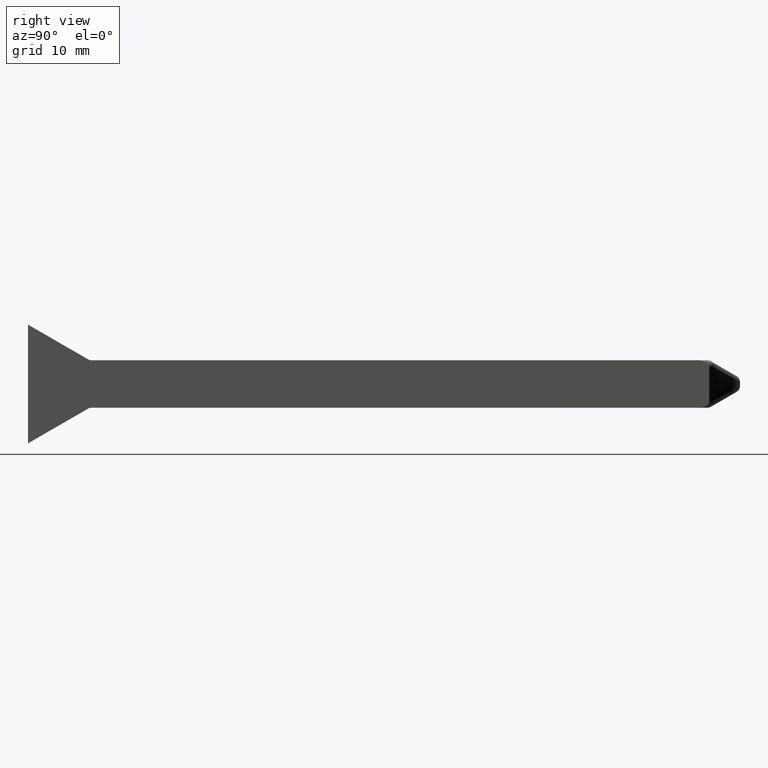
[diagram: clean part render]
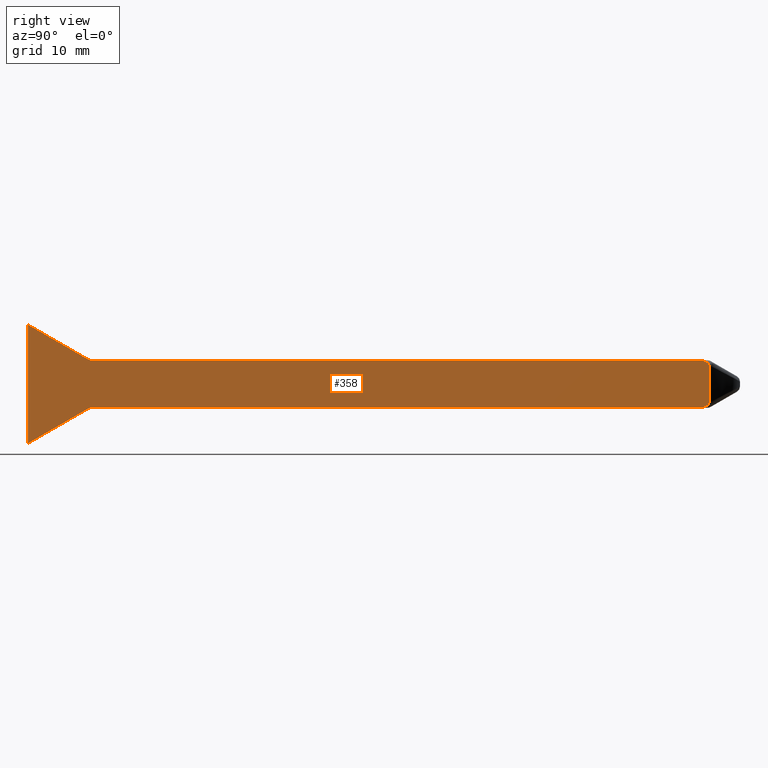
[diagram: same view with one face highlighted and labeled with its STEP entity id]
A machine part, right view. The second image highlights one B-rep face of the part: STEP entity #358.
In plain terms, the highlighted planar face has unit normal (1, 0, 0).
Its self-contained STEP definition (entity closure, byte-faithful):
#34=B_SPLINE_CURVE_WITH_KNOTS('',3,(#593,#594,#595,#596,#597,#598,#599,
#600,#601,#602),.UNSPECIFIED.,.F.,.F.,(4,2,2,2,4),(0.532441530368069,0.547450862035391,
0.567695790465013,0.597524915434434,0.64457020237994),.UNSPECIFIED.);
#35=B_SPLINE_CURVE_WITH_KNOTS('',3,(#606,#607,#608,#609,#610,#611,#612,
#613,#614,#615),.UNSPECIFIED.,.F.,.F.,(4,2,2,2,4),(0.420312858356198,0.467358145301704,
0.497187270271125,0.517432198700747,0.532441530368069),.UNSPECIFIED.);
#38=CIRCLE('',#403,0.5);
#39=CIRCLE('',#404,0.5);
#63=FACE_OUTER_BOUND('',#87,.T.);
#87=EDGE_LOOP('',(#244,#245,#246,#247,#248,#249,#250,#251,#252,#253));
#111=LINE('',#581,#133);
#114=LINE('',#587,#136);
#115=LINE('',#591,#137);
#116=LINE('',#604,#138);
#117=LINE('',#617,#139);
#118=LINE('',#620,#140);
#133=VECTOR('',#456,10.);
#136=VECTOR('',#461,10.);
#137=VECTOR('',#464,10.);
#138=VECTOR('',#465,10.);
#139=VECTOR('',#466,10.);
#140=VECTOR('',#469,10.);
#155=VERTEX_POINT('',#578);
#156=VERTEX_POINT('',#580);
#158=VERTEX_POINT('',#586);
#159=VERTEX_POINT('',#588);
#160=VERTEX_POINT('',#590);
#161=VERTEX_POINT('',#592);
#162=VERTEX_POINT('',#603);
#163=VERTEX_POINT('',#605);
#164=VERTEX_POINT('',#616);
#165=VERTEX_POINT('',#618);
#187=EDGE_CURVE('',#156,#155,#111,.T.);
#190=EDGE_CURVE('',#155,#158,#114,.T.);
#191=EDGE_CURVE('',#159,#158,#38,.T.);
#192=EDGE_CURVE('',#159,#160,#115,.T.);
#193=EDGE_CURVE('',#161,#160,#34,.T.);
#194=EDGE_CURVE('',#161,#162,#116,.T.);
#195=EDGE_CURVE('',#163,#162,#35,.T.);
#196=EDGE_CURVE('',#163,#164,#117,.T.);
#197=EDGE_CURVE('',#165,#164,#39,.T.);
#198=EDGE_CURVE('',#165,#156,#118,.T.);
#244=ORIENTED_EDGE('',*,*,#187,.T.);
#245=ORIENTED_EDGE('',*,*,#190,.T.);
#246=ORIENTED_EDGE('',*,*,#191,.F.);
#247=ORIENTED_EDGE('',*,*,#192,.T.);
#248=ORIENTED_EDGE('',*,*,#193,.F.);
#249=ORIENTED_EDGE('',*,*,#194,.T.);
#250=ORIENTED_EDGE('',*,*,#195,.F.);
#251=ORIENTED_EDGE('',*,*,#196,.T.);
#252=ORIENTED_EDGE('',*,*,#197,.F.);
#253=ORIENTED_EDGE('',*,*,#198,.T.);
#349=PLANE('',#402);
#358=ADVANCED_FACE('',(#63),#349,.T.);
#402=AXIS2_PLACEMENT_3D('',#585,#459,#460);
#403=AXIS2_PLACEMENT_3D('',#589,#462,#463);
#404=AXIS2_PLACEMENT_3D('',#619,#467,#468);
#456=DIRECTION('',(0.,7.93016446160828E-16,-1.));
#459=DIRECTION('center_axis',(1.,0.,0.));
#460=DIRECTION('ref_axis',(0.,0.,-1.));
#461=DIRECTION('',(0.,0.866025403784438,0.500000000000001));
#462=DIRECTION('center_axis',(1.,0.,0.));
#463=DIRECTION('ref_axis',(0.,-0.258819045102524,0.965925826289067));
#464=DIRECTION('',(0.,1.,-7.02809666932559E-17));
#465=DIRECTION('',(0.,0.,1.));
#466=DIRECTION('',(0.,-1.,-3.20587813129454E-16));
#467=DIRECTION('center_axis',(1.,0.,0.));
#468=DIRECTION('ref_axis',(0.,-0.258819045102524,-0.965925826289068));
#469=DIRECTION('',(0.,-0.866025403784438,0.5));
#578=CARTESIAN_POINT('',(5.,-20.0000000227066,-5.));
#580=CARTESIAN_POINT('',(5.,-20.0000000227066,5.));
#581=CARTESIAN_POINT('',(5.,-20.0000000227066,-1.14789130626797E-14));
#585=CARTESIAN_POINT('Origin',(5.,9.64999998864669,0.));
#586=CARTESIAN_POINT('',(5.,-14.9198730037844,-2.06698729810778));
#587=CARTESIAN_POINT('',(5.,-20.0000000227066,-5.));
#588=CARTESIAN_POINT('',(5.,-14.6698730037844,-2.));
#589=CARTESIAN_POINT('Origin',(5.,-14.6698730037844,-2.5));
#590=CARTESIAN_POINT('',(5.,36.4343820856394,-2.));
#591=CARTESIAN_POINT('',(5.,-14.8038476,-2.));
#592=CARTESIAN_POINT('',(5.,37.4019237886467,-1.5));
#593=CARTESIAN_POINT('Ctrl Pts',(5.,37.4019237886467,-1.5));
#594=CARTESIAN_POINT('Ctrl Pts',(5.,37.4019237886467,-1.55003110555774));
#595=CARTESIAN_POINT('Ctrl Pts',(5.,37.3852688075912,-1.60771205734979));
#596=CARTESIAN_POINT('Ctrl Pts',(5.,37.3280709592755,-1.71036678654257));
#597=CARTESIAN_POINT('Ctrl Pts',(5.,37.2706697534414,-1.7674878474809));
#598=CARTESIAN_POINT('Ctrl Pts',(5.,37.1347776003966,-1.86440762361259));
#599=CARTESIAN_POINT('Ctrl Pts',(5.,37.024811198338,-1.9107090011444));
#600=CARTESIAN_POINT('Ctrl Pts',(5.,36.7784339233492,-1.98114547058739));
#601=CARTESIAN_POINT('Ctrl Pts',(5.,36.5911997087911,-2.));
#602=CARTESIAN_POINT('Ctrl Pts',(5.,36.4343820856394,-2.));
#603=CARTESIAN_POINT('',(5.,37.4019237886467,1.5));
#604=CARTESIAN_POINT('',(5.,37.4019237886467,5.));
#605=CARTESIAN_POINT('',(5.,36.4343820856394,2.));
#606=CARTESIAN_POINT('Ctrl Pts',(5.,36.4343820856394,2.));
#607=CARTESIAN_POINT('Ctrl Pts',(5.,36.5911997087911,2.));
#608=CARTESIAN_POINT('Ctrl Pts',(5.,36.7784339233492,1.98114547058739));
#609=CARTESIAN_POINT('Ctrl Pts',(5.,37.024811198338,1.9107090011444));
#610=CARTESIAN_POINT('Ctrl Pts',(5.,37.1347776003966,1.86440762361259));
#611=CARTESIAN_POINT('Ctrl Pts',(5.,37.2706697534414,1.7674878474809));
#612=CARTESIAN_POINT('Ctrl Pts',(5.,37.3280709592755,1.71036678654257));
#613=CARTESIAN_POINT('Ctrl Pts',(5.,37.3852688075912,1.60771205734979));
#614=CARTESIAN_POINT('Ctrl Pts',(5.,37.4019237886467,1.55003110555774));
#615=CARTESIAN_POINT('Ctrl Pts',(5.,37.4019237886467,1.5));
#616=CARTESIAN_POINT('',(5.,-14.6698730037844,1.99999999999998));
#617=CARTESIAN_POINT('',(5.,37.4019237886467,2.));
#618=CARTESIAN_POINT('',(5.,-14.9198730037844,2.06698729810776));
#619=CARTESIAN_POINT('Origin',(5.,-14.6698730037844,2.49999999999998));
#620=CARTESIAN_POINT('',(5.,-14.8038476,2.));